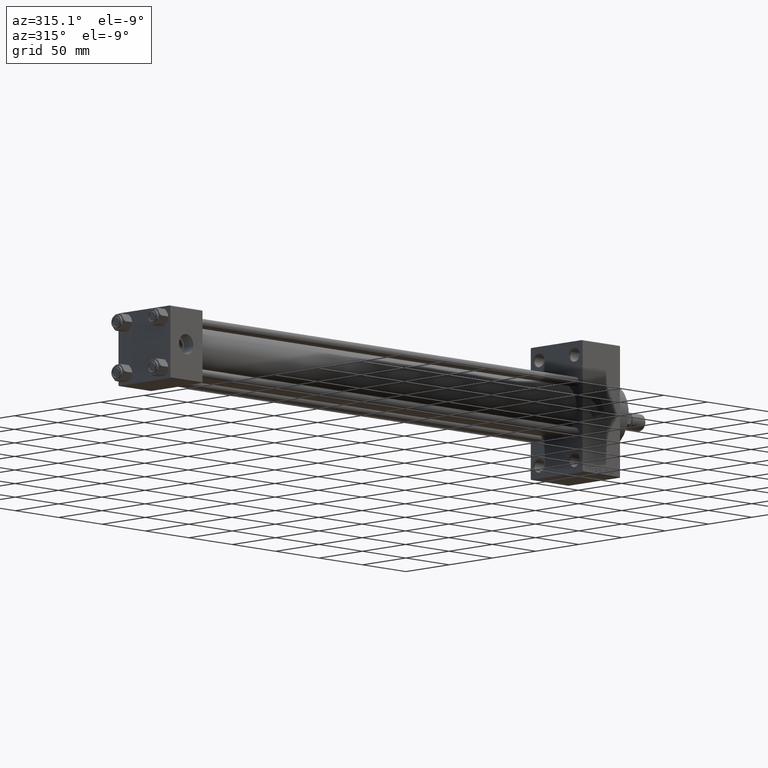
[diagram: clean part render]
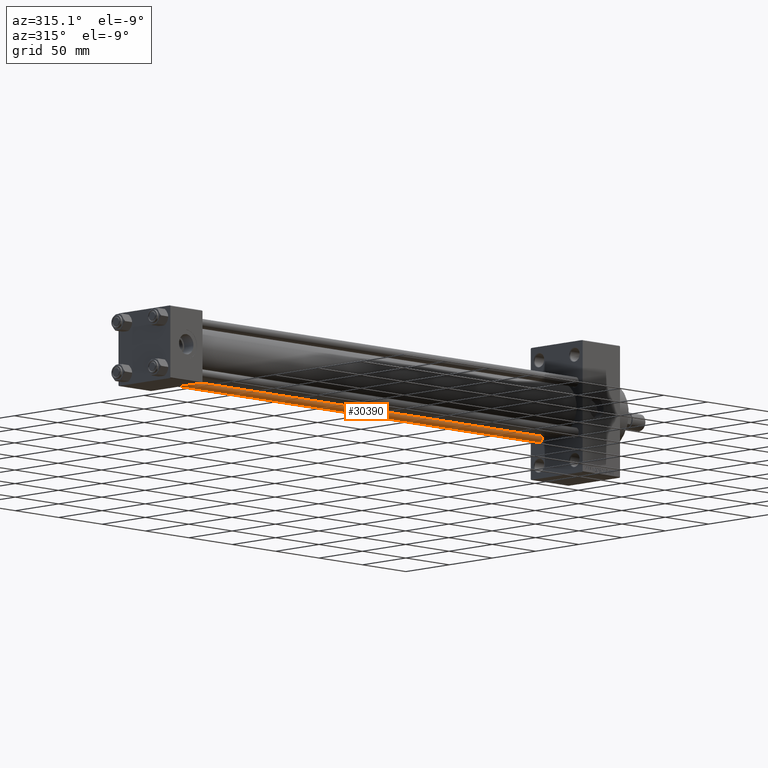
[diagram: same view with one face highlighted and labeled with its STEP entity id]
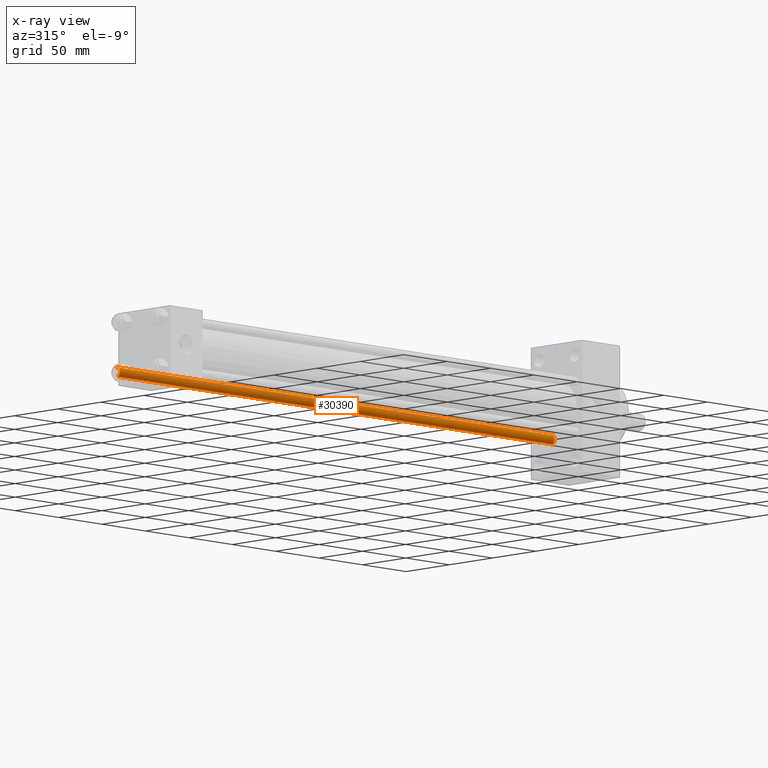
[diagram: x-ray of the same camera — body ghosted, the highlighted face saturated]
A machine part, auxiliary view. The second image highlights one B-rep face of the part: STEP entity #30390.
The next image is the same camera in x-ray: the body ghosted, the highlighted face saturated — about 0% of this face is hidden behind the body in this view.
In plain terms, the highlighted cylindrical surface (edge-blend (fillet) strip) has radius 4 mm, axis along (1, -0, 0).
Its self-contained STEP definition (entity closure, byte-faithful):
#2853 = CARTESIAN_POINT ( 'NONE',  ( -4.000000000000000000, 0.000000000000000000, 0.4999999999999449329 ) ) ;
#3106 = DIRECTION ( 'NONE',  ( 0.000000000000000000, 0.000000000000000000, -1.000000000000000000 ) ) ;
#4301 = VERTEX_POINT ( 'NONE', #27884 ) ;
#5779 = CIRCLE ( 'NONE', #38029, 4.000000000000000000 ) ;
#6596 = CARTESIAN_POINT ( 'NONE',  ( 4.000000000000000000, 4.898587196589412829E-16, 502.0000000000000000 ) ) ;
#8502 = CIRCLE ( 'NONE', #46397, 4.000000000000000000 ) ;
#9025 = ORIENTED_EDGE ( 'NONE', *, *, #16664, .T. ) ;
#10837 = CARTESIAN_POINT ( 'NONE',  ( 4.000000000000000000, 4.898587196589412829E-16, 0.4999999999999449329 ) ) ;
#10989 = VERTEX_POINT ( 'NONE', #10837 ) ;
#11522 = CARTESIAN_POINT ( 'NONE',  ( 0.000000000000000000, 0.000000000000000000, 0.4999999999999449329 ) ) ;
#14174 = FACE_OUTER_BOUND ( 'NONE', #49990, .T. ) ;
#14253 = CARTESIAN_POINT ( 'NONE',  ( -4.000000000000000000, 0.000000000000000000, 502.0000000000000000 ) ) ;
#14758 = VERTEX_POINT ( 'NONE', #2853 ) ;
#16664 = EDGE_CURVE ( 'NONE', #14758, #10989, #5779, .T. ) ;
#18223 = AXIS2_PLACEMENT_3D ( 'NONE', #44967, #34847, #49758 ) ;
#18679 = DIRECTION ( 'NONE',  ( -0.000000000000000000, -0.000000000000000000, -1.000000000000000000 ) ) ;
#21811 = DIRECTION ( 'NONE',  ( -0.000000000000000000, -0.000000000000000000, -1.000000000000000000 ) ) ;
#23663 = CARTESIAN_POINT ( 'NONE',  ( 4.000000000000000000, 4.898587196589412829E-16, 501.4999999999999432 ) ) ;
#24431 = EDGE_CURVE ( 'NONE', #34242, #4301, #8502, .T. ) ;
#24812 = EDGE_CURVE ( 'NONE', #34242, #10989, #37645, .T. ) ;
#25604 = LINE ( 'NONE', #14253, #26761 ) ;
#26086 = CARTESIAN_POINT ( 'NONE',  ( 0.000000000000000000, 0.000000000000000000, 501.4999999999999432 ) ) ;
#26761 = VECTOR ( 'NONE', #21811, 1000.000000000000000 ) ;
#27884 = CARTESIAN_POINT ( 'NONE',  ( -4.000000000000000000, 0.000000000000000000, 501.4999999999999432 ) ) ;
#29560 = CYLINDRICAL_SURFACE ( 'NONE', #18223, 4.000000000000000000 ) ;
#30390 = ADVANCED_FACE ( 'NONE', ( #14174 ), #29560, .T. ) ;
#32387 = ORIENTED_EDGE ( 'NONE', *, *, #24431, .T. ) ;
#33672 = DIRECTION ( 'NONE',  ( 1.000000000000000000, 0.000000000000000000, 0.000000000000000000 ) ) ;
#33776 = DIRECTION ( 'NONE',  ( 1.000000000000000000, 0.000000000000000000, 0.000000000000000000 ) ) ;
#34242 = VERTEX_POINT ( 'NONE', #23663 ) ;
#34847 = DIRECTION ( 'NONE',  ( -0.000000000000000000, -0.000000000000000000, -1.000000000000000000 ) ) ;
#37645 = LINE ( 'NONE', #6596, #47231 ) ;
#38029 = AXIS2_PLACEMENT_3D ( 'NONE', #11522, #49184, #33776 ) ;
#40980 = ORIENTED_EDGE ( 'NONE', *, *, #47957, .T. ) ;
#43277 = ORIENTED_EDGE ( 'NONE', *, *, #24812, .F. ) ;
#44967 = CARTESIAN_POINT ( 'NONE',  ( 0.000000000000000000, 0.000000000000000000, 502.0000000000000000 ) ) ;
#46397 = AXIS2_PLACEMENT_3D ( 'NONE', #26086, #3106, #33672 ) ;
#47231 = VECTOR ( 'NONE', #18679, 1000.000000000000000 ) ;
#47957 = EDGE_CURVE ( 'NONE', #4301, #14758, #25604, .T. ) ;
#49184 = DIRECTION ( 'NONE',  ( -0.000000000000000000, -0.000000000000000000, 1.000000000000000000 ) ) ;
#49758 = DIRECTION ( 'NONE',  ( -1.000000000000000000, 0.000000000000000000, 0.000000000000000000 ) ) ;
#49990 = EDGE_LOOP ( 'NONE', ( #43277, #32387, #40980, #9025 ) ) ;